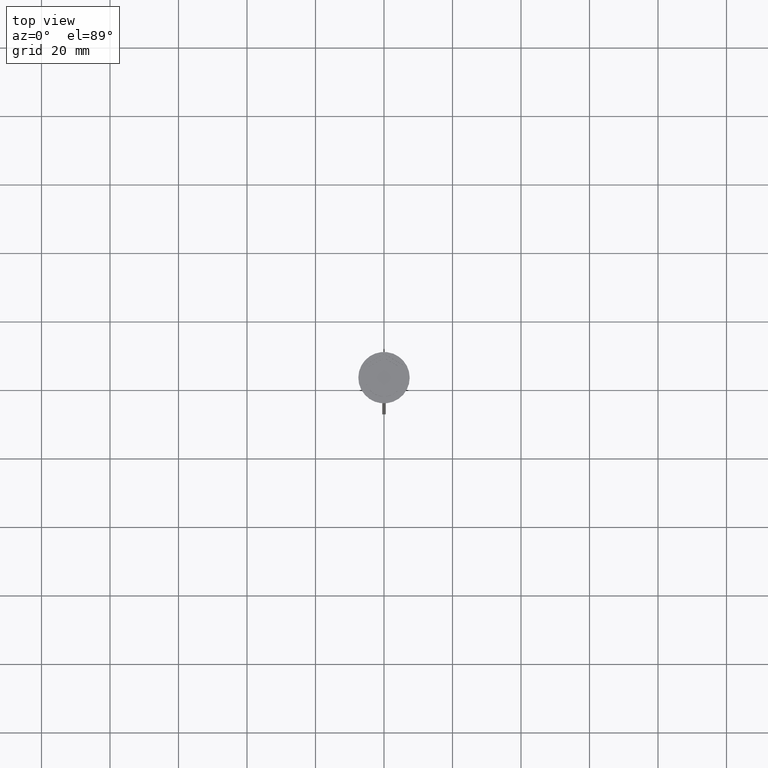
[diagram: clean part render]
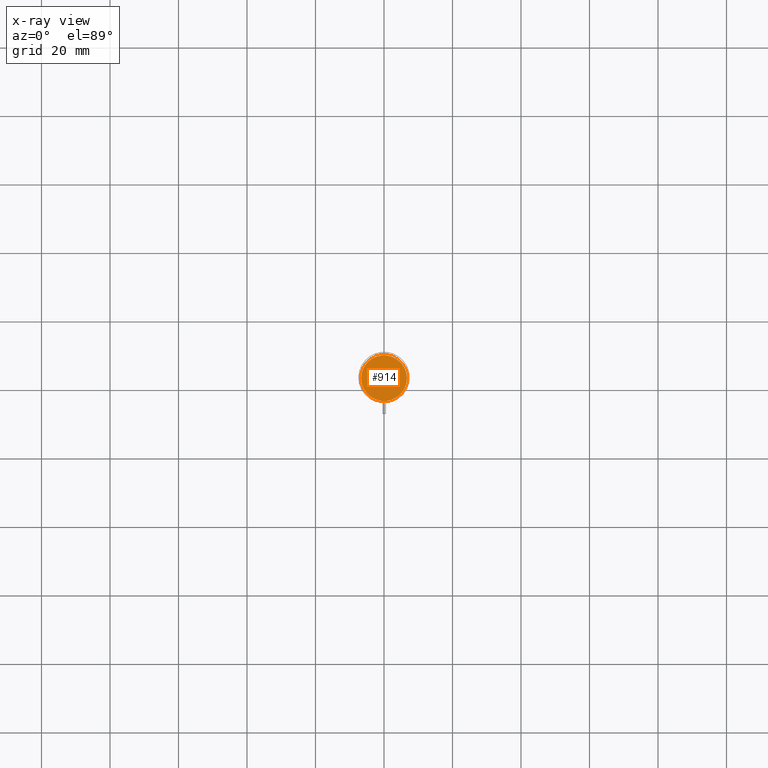
[diagram: x-ray — body ghosted, one internal face saturated and labeled with its STEP entity id]
A machine part, top view, then the same camera in x-ray: the body is ghosted and one INTERNAL B-rep face — a face not visible from any outside direction — is saturated and labeled: STEP entity #914.
In plain terms, the highlighted planar face has unit normal (0, 0, -1).
Its self-contained STEP definition (entity closure, byte-faithful):
#68 = DIRECTION ( 'NONE',  ( -0.000000000000000000, -0.000000000000000000, 1.000000000000000000 ) ) ;
#180 = CARTESIAN_POINT ( 'NONE',  ( 6.700000000000001066, 8.388830574159370862E-16, -10.50000000000000178 ) ) ;
#381 = FACE_OUTER_BOUND ( 'NONE', #2181, .T. ) ;
#536 = EDGE_CURVE ( 'NONE', #819, #1700, #868, .T. ) ;
#713 = CARTESIAN_POINT ( 'NONE',  ( -6.700000000000001066, 0.000000000000000000, -10.50000000000000178 ) ) ;
#819 = VERTEX_POINT ( 'NONE', #180 ) ;
#868 = CIRCLE ( 'NONE', #2211, 6.700000000000001066 ) ;
#870 = CARTESIAN_POINT ( 'NONE',  ( 0.000000000000000000, 0.000000000000000000, -10.50000000000000178 ) ) ;
#880 = ORIENTED_EDGE ( 'NONE', *, *, #536, .T. ) ;
#914 = ADVANCED_FACE ( 'NONE', ( #381 ), #1137, .F. ) ;
#1000 = CIRCLE ( 'NONE', #1321, 6.700000000000001066 ) ;
#1137 = PLANE ( 'NONE',  #1884 ) ;
#1321 = AXIS2_PLACEMENT_3D ( 'NONE', #2302, #2093, #1903 ) ;
#1393 = ORIENTED_EDGE ( 'NONE', *, *, #1596, .T. ) ;
#1596 = EDGE_CURVE ( 'NONE', #1700, #819, #1000, .T. ) ;
#1700 = VERTEX_POINT ( 'NONE', #713 ) ;
#1884 = AXIS2_PLACEMENT_3D ( 'NONE', #1945, #2371, #1955 ) ;
#1903 = DIRECTION ( 'NONE',  ( -1.000000000000000000, 0.000000000000000000, 0.000000000000000000 ) ) ;
#1945 = CARTESIAN_POINT ( 'NONE',  ( 0.000000000000000000, 0.000000000000000000, -10.50000000000000178 ) ) ;
#1955 = DIRECTION ( 'NONE',  ( -1.000000000000000000, 0.000000000000000000, -0.000000000000000000 ) ) ;
#2093 = DIRECTION ( 'NONE',  ( -0.000000000000000000, -0.000000000000000000, 1.000000000000000000 ) ) ;
#2181 = EDGE_LOOP ( 'NONE', ( #1393, #880 ) ) ;
#2211 = AXIS2_PLACEMENT_3D ( 'NONE', #870, #68, #2409 ) ;
#2302 = CARTESIAN_POINT ( 'NONE',  ( 0.000000000000000000, 0.000000000000000000, -10.50000000000000178 ) ) ;
#2371 = DIRECTION ( 'NONE',  ( 0.000000000000000000, 0.000000000000000000, -1.000000000000000000 ) ) ;
#2409 = DIRECTION ( 'NONE',  ( -1.000000000000000000, 0.000000000000000000, 0.000000000000000000 ) ) ;